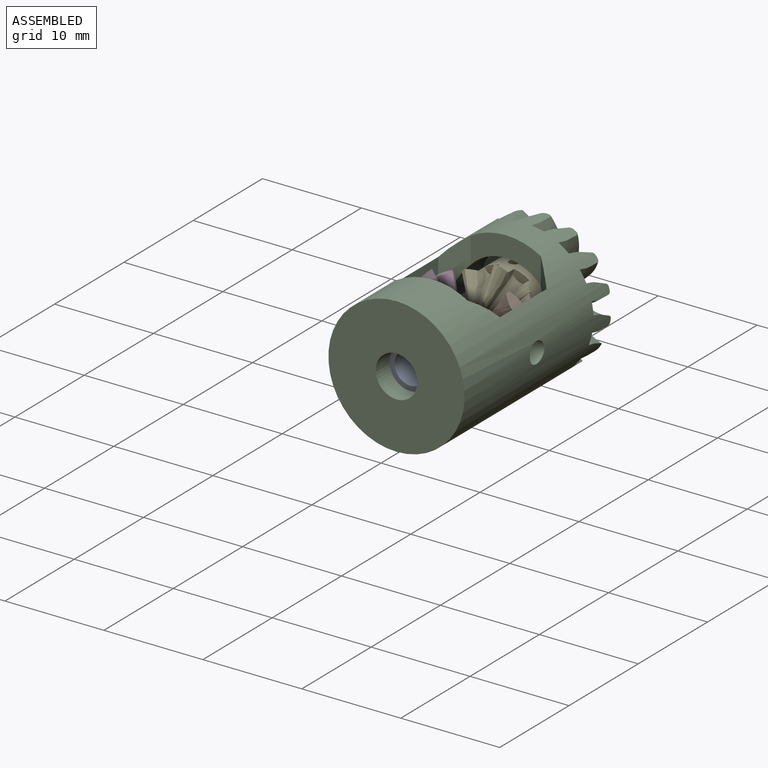
[diagram: assembled view]
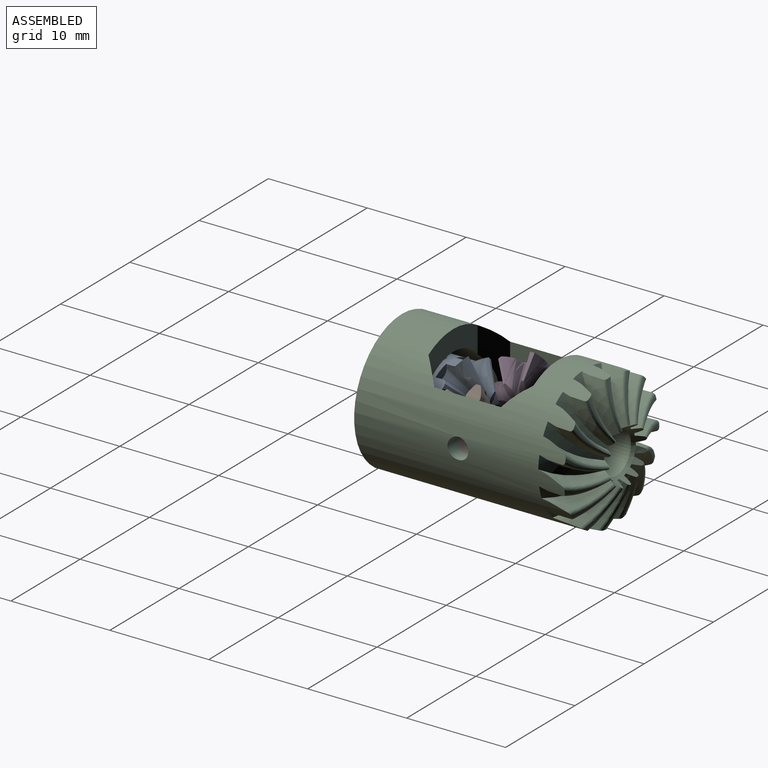
[diagram: assembled view, second angle]
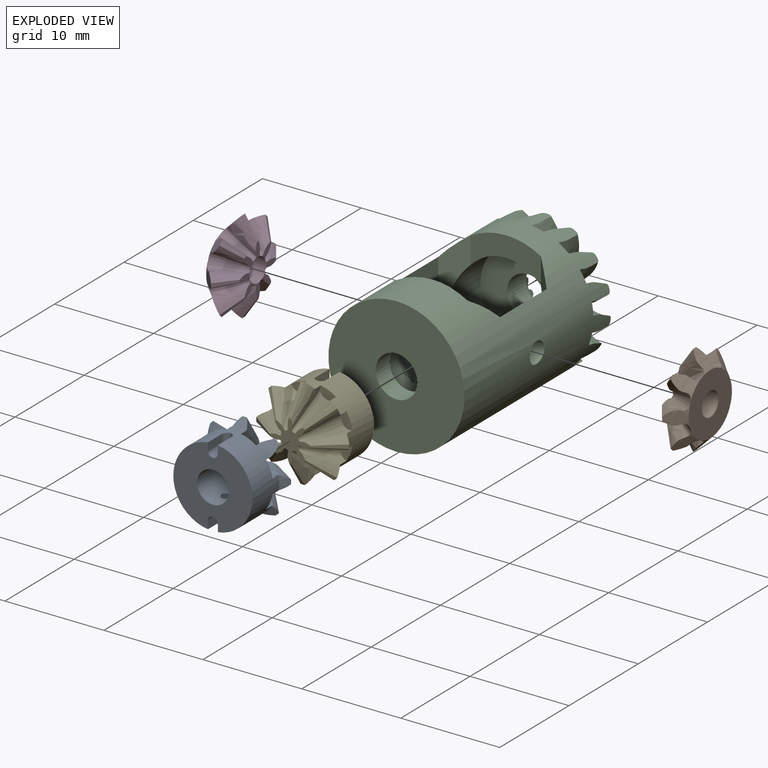
[diagram: exploded view]
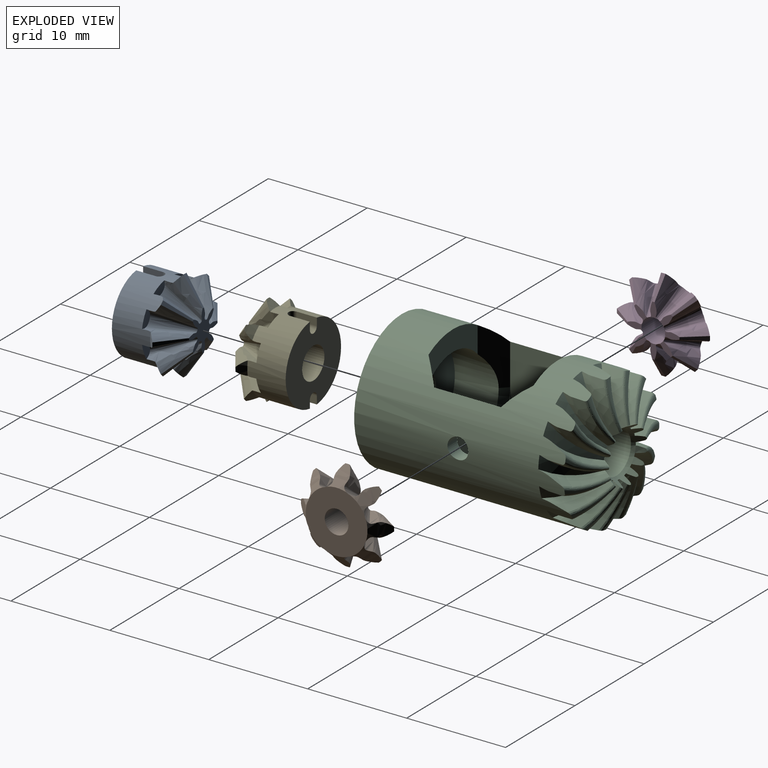
[diagram: exploded view, second angle]
ASSEMBLY  parts=5 mates=8
PART A: 70 faces, bbox 10.5x7x10.5 mm
  f0: cylinder r=0.5mm len=2.4mm, axis (0,0,1), area 5.8mm2, adj f3,f61,f67,f68,f69
  f1: cylinder r=0.5mm len=2.4mm, axis (0,0,1), area 5.8mm2, adj f3,f61,f64,f65,f66
  f2: plane 8x7.94mm, normal (0,1,0), area 39.9mm2, adj f3,f61,f64,f65,f66,f67,f68,f69
  f3: cylinder r=4mm len=8mm, axis (0,1,0), area 81.2mm2, adj f0,f1,f2,f4,f6,f8,f10,f12
  f4: cone r=4mm half-angle=45deg, axis (0,-1,0), area 0.9mm2, adj f3,f8,f9,f10
  f5: plane 4.23x4.23mm, normal (0,-1,0), area 6.4mm2, adj f7,f8,f9,f10,f11,f14,f15,f16
  f6: plane 1.73x1.25mm, normal (0,-1,0), area 1.2mm2, adj f3,f7,f8,f59,f60
  f7: bspline ~4.61x3.01mm, area 1.8mm2, adj f5,f6,f8,f60
  f8: bspline ~4.25x4.2mm, area 5.7mm2, adj f3,f4,f5,f6,f7,f9
  f9: cone r=3.05mm half-angle=41.5deg, axis (0,0.97,0.23), area 1mm2, adj f4,f5,f8,f10
  f10: bspline ~4.25x4.2mm, area 5.7mm2, adj f3,f4,f5,f9,f11,f12
  f11: bspline ~4.61x3.01mm, area 1.8mm2, adj f5,f10,f12,f14
  f12: plane 1.73x1.25mm, normal (0,-1,0), area 1.2mm2, adj f3,f10,f11,f14,f15
  f13: cone r=4mm half-angle=45deg, axis (0,-1,0), area 0.9mm2, adj f3,f15,f16,f17
  f14: bspline ~4.61x2.73mm, area 1.8mm2, adj f5,f11,f12,f15
  f15: bspline ~4.25x3mm, area 5.7mm2, adj f3,f5,f12,f13,f14,f16
  f16: cone r=3.05mm half-angle=41.5deg, axis (0.17,0.97,0.17), area 1mm2, adj f5,f13,f15,f17
  f17: bspline ~4.25x3mm, area 5.7mm2, adj f3,f5,f13,f16,f18,f19
  f18: bspline ~4.61x2.73mm, area 1.8mm2, adj f5,f17,f19,f21
  f19: plane 1.73x1.25mm, normal (0,-1,0), area 1.2mm2, adj f3,f17,f18,f21,f22
  f20: cone r=4mm half-angle=45deg, axis (0,-1,0), area 0.9mm2, adj f3,f22,f23,f24
  f21: bspline ~4.61x3.01mm, area 1.8mm2, adj f5,f18,f19,f22
  f22: bspline ~4.25x4.2mm, area 5.7mm2, adj f3,f5,f19,f20,f21,f23
  f23: cone r=3.05mm half-angle=41.5deg, axis (0.23,0.97,0), area 1mm2, adj f5,f20,f22,f24
  f24: bspline ~4.25x4.2mm, area 5.7mm2, adj f3,f5,f20,f23,f25,f26
  f25: bspline ~4.61x3.01mm, area 1.8mm2, adj f5,f24,f26,f28
  f26: plane 1.73x1.25mm, normal (0,-1,0), area 1.2mm2, adj f3,f24,f25,f28,f29
  f27: cone r=4mm half-angle=45deg, axis (0,-1,0), area 0.9mm2, adj f3,f29,f30,f31
  f28: bspline ~4.61x2.73mm, area 1.8mm2, adj f5,f25,f26,f29
  f29: bspline ~4.25x3mm, area 5.7mm2, adj f3,f5,f26,f27,f28,f30
  f30: cone r=3.05mm half-angle=41.5deg, axis (0.17,0.97,-0.17), area 1mm2, adj f5,f27,f29,f31
  f31: bspline ~4.25x3mm, area 5.7mm2, adj f3,f5,f27,f30,f32,f33
  f32: bspline ~4.61x2.73mm, area 1.8mm2, adj f5,f31,f33,f35
  f33: plane 1.73x1.25mm, normal (0,-1,0), area 1.2mm2, adj f3,f31,f32,f35,f36
  f34: cone r=4mm half-angle=45deg, axis (0,-1,0), area 0.9mm2, adj f3,f36,f37,f38
  f35: bspline ~4.61x3.01mm, area 1.8mm2, adj f5,f32,f33,f36
  f36: bspline ~4.25x4.2mm, area 5.7mm2, adj f3,f5,f33,f34,f35,f37
  f37: cone r=3.05mm half-angle=41.5deg, axis (0,0.97,-0.23), area 1mm2, adj f5,f34,f36,f38
  f38: bspline ~4.25x4.2mm, area 5.7mm2, adj f3,f5,f34,f37,f39,f40
  f39: bspline ~4.61x3.01mm, area 1.8mm2, adj f5,f38,f40,f42
  f40: plane 1.73x1.25mm, normal (0,-1,0), area 1.2mm2, adj f3,f38,f39,f42,f43
  f41: cone r=4mm half-angle=45deg, axis (0,-1,0), area 0.9mm2, adj f3,f43,f44,f45
  f42: bspline ~4.61x2.73mm, area 1.8mm2, adj f5,f39,f40,f43
  f43: bspline ~4.25x3mm, area 5.7mm2, adj f3,f5,f40,f41,f42,f44
  f44: cone r=3.05mm half-angle=41.5deg, axis (-0.17,0.97,-0.17), area 1mm2, adj f5,f41,f43,f45
  f45: bspline ~4.25x3mm, area 5.7mm2, adj f3,f5,f41,f44,f46,f47
  f46: bspline ~4.61x2.73mm, area 1.8mm2, adj f5,f45,f47,f49
  f47: plane 1.73x1.25mm, normal (0,-1,0), area 1.2mm2, adj f3,f45,f46,f49,f50
  f48: cone r=4mm half-angle=45deg, axis (0,-1,0), area 0.9mm2, adj f3,f50,f51,f52
  f49: bspline ~4.61x3.01mm, area 1.8mm2, adj f5,f46,f47,f50
  f50: bspline ~4.25x4.2mm, area 5.7mm2, adj f3,f5,f47,f48,f49,f51
  f51: cone r=3.05mm half-angle=41.5deg, axis (-0.23,0.97,0), area 1mm2, adj f5,f48,f50,f52
  f52: bspline ~4.25x4.2mm, area 5.7mm2, adj f3,f5,f48,f51,f53,f54
  f53: bspline ~4.61x3.01mm, area 1.8mm2, adj f5,f52,f54,f56
  f54: plane 1.73x1.25mm, normal (0,-1,0), area 1.2mm2, adj f3,f52,f53,f56,f57
  f55: cone r=4mm half-angle=45deg, axis (0,-1,0), area 0.9mm2, adj f3,f57,f58,f59
  f56: bspline ~4.61x2.73mm, area 1.8mm2, adj f5,f53,f54,f57
  f57: bspline ~4.25x3mm, area 5.7mm2, adj f3,f5,f54,f55,f56,f58
  f58: cone r=3.05mm half-angle=41.5deg, axis (-0.17,0.97,0.17), area 1mm2, adj f5,f55,f57,f59
  f59: bspline ~4.25x3mm, area 5.7mm2, adj f3,f5,f6,f55,f58,f60
  f60: bspline ~4.61x2.73mm, area 1.8mm2, adj f5,f6,f7,f59
  f61: cylinder r=1.6mm len=3.88mm, axis (0,1,0), area 37.4mm2, adj f0,f1,f2,f63
  f62: plane 1.2x1.2mm, normal (0,1,0), area 1.1mm2, adj f63
  f63: torus R=0.6mm, axis (0,-1,0), area 12.2mm2, adj f61,f62
  f64: cylinder r=0.5mm len=2mm, axis (0,1,0), area 3.1mm2, adj f1,f2,f65,f66
  f65: plane 2x0.77mm, normal (1,0,0), area 1.5mm2, adj f1,f2,f3,f64
  f66: plane 2x0.77mm, normal (-1,0,0), area 1.5mm2, adj f1,f2,f3,f64
  f67: cylinder r=0.5mm len=2mm, axis (0,1,0), area 3.1mm2, adj f0,f2,f68,f69
  f68: plane 2x0.77mm, normal (-1,0,0), area 1.5mm2, adj f0,f2,f3,f67
  f69: plane 2x0.77mm, normal (1,0,0), area 1.5mm2, adj f0,f2,f3,f67
PART B: 58 faces, bbox 9.5x3.9x9.5 mm
  f0: plane 6.25x6.25mm, normal (0,1,0), area 26.1mm2, adj f8,f9,f10,f11,f12,f13,f14,f15
  f1: plane 1.49x1.49mm, normal (0,-1,0), area 0.8mm2, adj f10,f11,f30,f31,f32,f57
  f2: plane 1.61x0.79mm, normal (0,-1,0), area 0.8mm2, adj f8,f9,f26,f27,f28,f57
  f3: plane 1.49x1.49mm, normal (0,-1,0), area 0.8mm2, adj f22,f23,f54,f55,f56,f57
  f4: plane 1.61x0.79mm, normal (0,-1,0), area 0.8mm2, adj f20,f21,f50,f51,f52,f57
  f5: plane 1.49x1.49mm, normal (0,-1,0), area 0.8mm2, adj f18,f19,f46,f47,f48,f57
  f6: plane 1.61x0.79mm, normal (0,-1,0), area 0.8mm2, adj f16,f17,f42,f43,f44,f57
  f7: plane 1.49x1.49mm, normal (0,-1,0), area 0.8mm2, adj f14,f15,f38,f39,f40,f57
  f8: bspline ~3.61x2.37mm, area 1.6mm2, adj f0,f2,f23,f25,f26,f57
  f9: bspline ~3.61x2.37mm, area 1.6mm2, adj f0,f2,f10,f25,f28,f57
  f10: bspline ~3.61x2.14mm, area 1.6mm2, adj f0,f1,f9,f29,f30,f57
  f11: bspline ~3.61x2.14mm, area 1.6mm2, adj f0,f1,f12,f29,f32,f57
  f12: bspline ~3.61x2.37mm, area 1.6mm2, adj f0,f11,f24,f33,f34,f57
  f13: bspline ~3.61x2.37mm, area 1.6mm2, adj f0,f14,f24,f33,f36,f57
  f14: bspline ~3.61x2.14mm, area 1.6mm2, adj f0,f7,f13,f37,f38,f57
  f15: bspline ~3.61x2.14mm, area 1.6mm2, adj f0,f7,f16,f37,f40,f57
  f16: bspline ~3.61x2.37mm, area 1.6mm2, adj f0,f6,f15,f41,f42,f57
  f17: bspline ~3.61x2.37mm, area 1.6mm2, adj f0,f6,f18,f41,f44,f57
  f18: bspline ~3.61x2.14mm, area 1.6mm2, adj f0,f5,f17,f45,f46,f57
  f19: bspline ~3.61x2.14mm, area 1.6mm2, adj f0,f5,f20,f45,f48,f57
  f20: bspline ~3.61x2.37mm, area 1.6mm2, adj f0,f4,f19,f49,f50,f57
  f21: bspline ~3.61x2.37mm, area 1.6mm2, adj f0,f4,f22,f49,f52,f57
  f22: bspline ~3.61x2.14mm, area 1.6mm2, adj f0,f3,f21,f53,f54,f57
  f23: bspline ~3.61x2.14mm, area 1.6mm2, adj f0,f3,f8,f53,f56,f57
  f24: plane 1.61x0.79mm, normal (0,-1,0), area 0.8mm2, adj f12,f13,f34,f35,f36,f57
  f25: cone r=3.12mm half-angle=45deg, axis (0,-1,0), area 2.3mm2, adj f0,f8,f9,f26,f27,f28
  f26: bspline ~3.48x3.45mm, area 4.8mm2, adj f2,f8,f25,f27
  f27: cone r=2.48mm half-angle=41.5deg, axis (0,0.97,0.23), area 0.8mm2, adj f2,f25,f26,f28
  f28: bspline ~3.48x3.45mm, area 4.8mm2, adj f2,f9,f25,f27
  f29: cone r=3.12mm half-angle=45deg, axis (0,-1,0), area 2.3mm2, adj f0,f10,f11,f30,f31,f32
  f30: bspline ~3.48x2.47mm, area 4.8mm2, adj f1,f10,f29,f31
  f31: cone r=2.48mm half-angle=41.5deg, axis (0.17,0.97,0.17), area 0.8mm2, adj f1,f29,f30,f32
  f32: bspline ~3.48x2.47mm, area 4.8mm2, adj f1,f11,f29,f31
  f33: cone r=3.12mm half-angle=45deg, axis (0,-1,0), area 2.3mm2, adj f0,f12,f13,f34,f35,f36
  f34: bspline ~3.48x3.45mm, area 4.8mm2, adj f12,f24,f33,f35
  f35: cone r=2.48mm half-angle=41.5deg, axis (0.23,0.97,0), area 0.8mm2, adj f24,f33,f34,f36
  f36: bspline ~3.48x3.45mm, area 4.8mm2, adj f13,f24,f33,f35
  f37: cone r=3.12mm half-angle=45deg, axis (0,-1,0), area 2.3mm2, adj f0,f14,f15,f38,f39,f40
  f38: bspline ~3.48x2.47mm, area 4.8mm2, adj f7,f14,f37,f39
  f39: cone r=2.48mm half-angle=41.5deg, axis (0.17,0.97,-0.17), area 0.8mm2, adj f7,f37,f38,f40
  f40: bspline ~3.48x2.47mm, area 4.8mm2, adj f7,f15,f37,f39
  f41: cone r=3.12mm half-angle=45deg, axis (0,-1,0), area 2.3mm2, adj f0,f16,f17,f42,f43,f44
  f42: bspline ~3.48x3.45mm, area 4.8mm2, adj f6,f16,f41,f43
  f43: cone r=2.48mm half-angle=41.5deg, axis (0,0.97,-0.23), area 0.8mm2, adj f6,f41,f42,f44
  f44: bspline ~3.48x3.45mm, area 4.8mm2, adj f6,f17,f41,f43
  f45: cone r=3.12mm half-angle=45deg, axis (0,-1,0), area 2.3mm2, adj f0,f18,f19,f46,f47,f48
  f46: bspline ~3.48x2.47mm, area 4.8mm2, adj f5,f18,f45,f47
  f47: cone r=2.48mm half-angle=41.5deg, axis (-0.17,0.97,-0.17), area 0.8mm2, adj f5,f45,f46,f48
  f48: bspline ~3.48x2.47mm, area 4.8mm2, adj f5,f19,f45,f47
  f49: cone r=3.12mm half-angle=45deg, axis (0,-1,0), area 2.3mm2, adj f0,f20,f21,f50,f51,f52
  f50: bspline ~3.48x3.45mm, area 4.8mm2, adj f4,f20,f49,f51
  f51: cone r=2.48mm half-angle=41.5deg, axis (-0.23,0.97,0), area 0.8mm2, adj f4,f49,f50,f52
  f52: bspline ~3.48x3.45mm, area 4.8mm2, adj f4,f21,f49,f51
  f53: cone r=3.12mm half-angle=45deg, axis (0,-1,0), area 2.3mm2, adj f0,f22,f23,f54,f55,f56
  f54: bspline ~3.48x2.47mm, area 4.8mm2, adj f3,f22,f53,f55
  f55: cone r=2.48mm half-angle=41.5deg, axis (-0.17,0.97,0.17), area 0.8mm2, adj f3,f53,f54,f56
  f56: bspline ~3.48x2.47mm, area 4.8mm2, adj f3,f23,f53,f55
  f57: cylinder r=1.2mm len=3.03mm, axis (0,1,0), area 22.8mm2, adj f0,f1,f2,f3,f4,f5,f6,f7
PART C: 184 faces, bbox 17.2x23.8x17.2 mm
  f0: cone r=3.37mm half-angle=44.9deg, axis (1,0,0), area 0.3mm2, adj f4,f163,f180
  f1: cone r=3.37mm half-angle=44.9deg, axis (1,0,0), area 25.7mm2, adj f7,f169,f179
  f2: cone r=5.3mm half-angle=44.9deg, axis (-1,0,0), area 0.3mm2, adj f5,f163,f180
  f3: cone r=5.3mm half-angle=44.9deg, axis (-1,0,0), area 25.7mm2, adj f6,f171,f179
  f4: cylinder r=5.3mm len=0.69mm, axis (-1,0,0), area 0.1mm2, adj f0,f163,f180
  f5: cylinder r=5.3mm len=0.69mm, axis (-1,0,0), area 0.1mm2, adj f2,f163,f180
  f6: cylinder r=5.3mm len=6.52mm, axis (-1,0,0), area 0mm2, adj f3,f179
  f7: cylinder r=5.3mm len=6.52mm, axis (-1,0,0), area 0mm2, adj f1,f179
  f8: cylinder r=5.3mm len=0.69mm, axis (-1,0,0), area 0.1mm2, adj f10,f117,f181
  f9: cone r=3.37mm half-angle=44.9deg, axis (1,0,0), area 0.3mm2, adj f117,f170,f181
  f10: cone r=5.3mm half-angle=44.9deg, axis (-1,0,0), area 0.3mm2, adj f8,f117,f181
  f11: bspline ~5.83x4.24mm, area 3.8mm2, adj f14,f16,f165,f172
  f12: bspline ~5.81x4.23mm, area 4mm2, adj f13,f15,f165,f172
  f13: bspline ~4.98x2.19mm, area 1.8mm2, adj f12,f14,f120,f165,f172
  f14: bspline ~5.19x2.32mm, area 1.9mm2, adj f11,f13,f120,f165,f172
  f15: bspline ~4.86x3.21mm, area 2.5mm2, adj f12,f105,f119,f165,f172
  f16: bspline ~5.36x3.28mm, area 2.6mm2, adj f11,f104,f118,f165,f172
  f17: cylinder r=2.1mm len=4.2mm, axis (0,-1,0), area 36mm2, adj f164,f172
  f18: bspline ~5.79x4.24mm, area 3.8mm2, adj f21,f23,f165,f172
  f19: bspline ~6.03x4.23mm, area 4mm2, adj f20,f22,f165,f172
  f20: bspline ~5.12x2.19mm, area 1.8mm2, adj f19,f21,f123,f165,f172
  f21: bspline ~5.08x2.32mm, area 1.9mm2, adj f18,f20,f123,f165,f172
  f22: bspline ~5.16x3.21mm, area 2.5mm2, adj f19,f104,f122,f165,f172
  f23: bspline ~5.24x3.28mm, area 2.6mm2, adj f18,f103,f121,f165,f172
  f24: bspline ~4.75x4.24mm, area 3.8mm2, adj f27,f29,f165,f172
  f25: bspline ~5.2x4.23mm, area 4mm2, adj f26,f28,f165,f172
  f26: bspline ~4.51x2.85mm, area 1.8mm2, adj f25,f27,f126,f165,f172
  f27: bspline ~4.19x3.37mm, area 1.9mm2, adj f24,f26,f126,f165,f172
  f28: bspline ~4.57x3.21mm, area 2.5mm2, adj f25,f103,f125,f165,f172
  f29: bspline ~4.21x3.42mm, area 2.6mm2, adj f24,f102,f124,f165,f172
  f30: bspline ~5.2x4.24mm, area 3.9mm2, adj f33,f35,f165,f172
  f31: bspline ~4.99x4.23mm, area 4mm2, adj f32,f34,f165,f172
  f32: bspline ~4.34x3.16mm, area 1.8mm2, adj f31,f33,f129,f165,f172
  f33: bspline ~4.68x2.58mm, area 1.9mm2, adj f30,f32,f129,f165,f172
  f34: bspline ~4.07x3.21mm, area 2.5mm2, adj f31,f102,f128,f165,f172
  f35: bspline ~4.84x3.28mm, area 2.6mm2, adj f30,f116,f127,f165,f172
  f36: bspline ~5.92x4.24mm, area 3.8mm2, adj f39,f41,f165,f172
  f37: bspline ~5.97x4.23mm, area 4mm2, adj f38,f40,f165,f172
  f38: bspline ~5.08x2.19mm, area 1.8mm2, adj f37,f39,f132,f165,f172
  f39: bspline ~5.25x2.32mm, area 1.9mm2, adj f36,f38,f132,f165,f172
  f40: bspline ~5.02x3.21mm, area 2.5mm2, adj f37,f116,f131,f165,f172
  f41: bspline ~5.42x3.28mm, area 2.6mm2, adj f36,f115,f130,f165,f172
  f42: bspline ~5.62x4.24mm, area 3.8mm2, adj f45,f47,f165,f172
  f43: bspline ~5.91x4.23mm, area 4mm2, adj f44,f46,f165,f172
  f44: bspline ~5.04x2.19mm, area 1.8mm2, adj f43,f45,f135,f165,f172
  f45: bspline ~4.93x2.32mm, area 1.9mm2, adj f42,f44,f135,f165,f172
  f46: bspline ~5.1x3.21mm, area 2.5mm2, adj f43,f115,f134,f165,f172
  f47: bspline ~5.06x3.28mm, area 2.6mm2, adj f42,f114,f133,f165,f172
  f48: bspline ~4.35x4.24mm, area 3.8mm2, adj f51,f53,f165,f172
  f49: bspline ~4.84x4.23mm, area 4mm2, adj f50,f52,f165,f172
  f50: bspline ~4.24x3.29mm, area 1.8mm2, adj f49,f51,f138,f165,f172
  f51: bspline ~3.84x3.75mm, area 1.9mm2, adj f48,f50,f138,f165,f172
  f52: bspline ~4.29x3.21mm, area 2.5mm2, adj f49,f114,f137,f165,f172
  f53: bspline ~3.84x3.83mm, area 2.6mm2, adj f48,f113,f136,f165,f172
  f54: bspline ~5.47x4.24mm, area 3.8mm2, adj f57,f59,f165,f172
  f55: bspline ~5.32x4.23mm, area 4mm2, adj f56,f58,f165,f172
  f56: bspline ~4.61x2.73mm, area 1.8mm2, adj f55,f57,f141,f165,f172
  f57: bspline ~4.9x2.32mm, area 1.9mm2, adj f54,f56,f141,f165,f172
  f58: bspline ~4.39x3.21mm, area 2.5mm2, adj f55,f113,f140,f165,f172
  f59: bspline ~5.07x3.28mm, area 2.6mm2, adj f54,f112,f139,f165,f172
  f60: bspline ~5.94x4.24mm, area 3.8mm2, adj f63,f65,f165,f172
  f61: bspline ~6.05x4.23mm, area 4mm2, adj f62,f64,f165,f172
  f62: bspline ~5.13x2.19mm, area 1.8mm2, adj f61,f63,f144,f165,f172
  f63: bspline ~5.25x2.32mm, area 1.9mm2, adj f60,f62,f144,f165,f172
  f64: bspline ~5.12x3.21mm, area 2.5mm2, adj f61,f112,f143,f165,f172
  f65: bspline ~5.42x3.28mm, area 2.6mm2, adj f60,f111,f142,f165,f172
  f66: bspline ~5.39x4.24mm, area 3.8mm2, adj f69,f71,f165,f172
  f67: bspline ~5.74x4.23mm, area 4mm2, adj f68,f70,f165,f172
  f68: bspline ~4.9x2.19mm, area 1.8mm2, adj f67,f69,f147,f165,f172
  f69: bspline ~4.73x2.5mm, area 1.9mm2, adj f66,f68,f147,f165,f172
  f70: bspline ~4.98x3.21mm, area 2.5mm2, adj f67,f111,f146,f165,f172
  f71: bspline ~4.83x3.28mm, area 2.6mm2, adj f66,f110,f145,f165,f172
  f72: bspline ~4.48x4.24mm, area 3.8mm2, adj f75,f77,f165,f172
  f73: bspline ~4.51x4.23mm, area 4mm2, adj f74,f76,f165,f172
  f74: bspline ~3.92x3.68mm, area 1.8mm2, adj f73,f75,f150,f165,f172
  f75: bspline ~4.08x3.46mm, area 1.9mm2, adj f72,f74,f150,f165,f172
  f76: bspline ~3.97x3.32mm, area 2.5mm2, adj f73,f110,f149,f165,f172
  f77: bspline ~4.22x3.4mm, area 2.6mm2, adj f72,f109,f148,f165,f172
  f78: bspline ~5.68x4.24mm, area 3.8mm2, adj f81,f83,f165,f172
  f79: bspline ~5.6x4.23mm, area 4mm2, adj f80,f82,f165,f172
  f80: bspline ~4.82x2.28mm, area 1.8mm2, adj f79,f81,f153,f165,f172
  f81: bspline ~5.07x2.32mm, area 1.9mm2, adj f78,f80,f153,f165,f172
  f82: bspline ~4.65x3.21mm, area 2.5mm2, adj f79,f109,f152,f165,f172
  f83: bspline ~5.24x3.28mm, area 2.6mm2, adj f78,f108,f151,f165,f172
  f84: bspline ~5.9x4.24mm, area 3.8mm2, adj f87,f89,f165,f172
  f85: bspline ~6.07x4.23mm, area 4mm2, adj f86,f88,f165,f172
  f86: bspline ~5.15x2.19mm, area 1.8mm2, adj f85,f87,f156,f165,f172
  f87: bspline ~5.19x2.32mm, area 1.9mm2, adj f84,f86,f156,f165,f172
  f88: bspline ~5.17x3.21mm, area 2.5mm2, adj f85,f108,f155,f165,f172
  f89: bspline ~5.36x3.28mm, area 2.6mm2, adj f84,f107,f154,f165,f172
  f90: bspline ~5.09x4.24mm, area 3.8mm2, adj f93,f95,f165,f172
  f91: bspline ~5.5x4.23mm, area 4mm2, adj f92,f94,f165,f172
  f92: bspline ~4.73x2.39mm, area 1.8mm2, adj f91,f93,f159,f165,f172
  f93: bspline ~4.48x2.95mm, area 1.9mm2, adj f90,f92,f159,f165,f172
  f94: bspline ~4.8x3.21mm, area 2.5mm2, adj f91,f107,f158,f165,f172
  f95: bspline ~4.54x3.28mm, area 2.6mm2, adj f90,f106,f157,f165,f172
  f96: bspline ~4.87x4.24mm, area 3.8mm2, adj f99,f101,f165,f172
  f97: bspline ~4.6x4.23mm, area 4mm2, adj f98,f100,f165,f172
  f98: bspline ~4.03x3.56mm, area 1.8mm2, adj f97,f99,f162,f165,f172
  f99: bspline ~4.4x3.04mm, area 1.9mm2, adj f96,f98,f162,f165,f172
  f100: bspline ~3.72x3.6mm, area 2.5mm2, adj f97,f106,f161,f165,f172
  f101: bspline ~4.56x3.28mm, area 2.6mm2, adj f96,f105,f160,f165,f172
  f102: cone r=6.88mm half-angle=53.1deg, axis (0,-1,0), area 4.4mm2, adj f29,f34,f124,f128,f165,f172
  f103: cone r=6.88mm half-angle=53.1deg, axis (0,-1,0), area 4.4mm2, adj f23,f28,f121,f125,f165,f172
  f104: cone r=6.88mm half-angle=53.1deg, axis (0,-1,0), area 4.4mm2, adj f16,f22,f118,f122,f165,f172
  f105: cone r=6.88mm half-angle=53.1deg, axis (0,-1,0), area 4.4mm2, adj f15,f101,f119,f160,f165,f172
  f106: cone r=6.88mm half-angle=53.1deg, axis (0,-1,0), area 4.4mm2, adj f95,f100,f157,f161,f165,f172
  f107: cone r=6.88mm half-angle=53.1deg, axis (0,-1,0), area 4.4mm2, adj f89,f94,f154,f158,f165,f172
  f108: cone r=6.88mm half-angle=53.1deg, axis (0,-1,0), area 4.4mm2, adj f83,f88,f151,f155,f165,f172
  f109: cone r=6.88mm half-angle=53.1deg, axis (0,-1,0), area 4.4mm2, adj f77,f82,f148,f152,f165,f172
  f110: cone r=6.88mm half-angle=53.1deg, axis (0,-1,0), area 4.4mm2, adj f71,f76,f145,f149,f165,f172
  f111: cone r=6.88mm half-angle=53.1deg, axis (0,-1,0), area 4.4mm2, adj f65,f70,f142,f146,f165,f172
  f112: cone r=6.88mm half-angle=53.1deg, axis (0,-1,0), area 4.4mm2, adj f59,f64,f139,f143,f165,f172
  f113: cone r=6.88mm half-angle=53.1deg, axis (0,-1,0), area 4.4mm2, adj f53,f58,f136,f140,f165,f172
  f114: cone r=6.88mm half-angle=53.1deg, axis (0,-1,0), area 4.4mm2, adj f47,f52,f133,f137,f165,f172
  f115: cone r=6.88mm half-angle=53.1deg, axis (0,-1,0), area 4.4mm2, adj f41,f46,f130,f134,f165,f172
  f116: cone r=6.88mm half-angle=53.1deg, axis (0,-1,0), area 4.4mm2, adj f35,f40,f127,f131,f165,f172
  f117: cylinder r=4.8mm len=9.6mm, axis (0,-1,0), area 120.5mm2, adj f8,f9,f10,f164,f170,f176,f177,f178
  f118: bspline ~6.16x4.94mm, area 1.1mm2, adj f16,f104,f165
  f119: bspline ~5.69x4.94mm, area 1.1mm2, adj f15,f105,f165
  f120: cone r=6.88mm half-angle=67.4deg, axis (0,-1,0), area 0.4mm2, adj f13,f14,f165
  f121: bspline ~6.15x4.94mm, area 1.1mm2, adj f23,f103,f165
  f122: bspline ~6.24x4.94mm, area 1.1mm2, adj f22,f104,f165
  f123: cone r=6.88mm half-angle=67.4deg, axis (0,-1,0), area 0.4mm2, adj f20,f21,f165
  f124: bspline ~5.08x4.94mm, area 1.1mm2, adj f29,f102,f165
  f125: bspline ~5.72x4.94mm, area 1.1mm2, adj f28,f103,f165
  f126: cone r=6.88mm half-angle=67.4deg, axis (0,-1,0), area 0.4mm2, adj f26,f27,f165
  f127: bspline ~5.46x4.94mm, area 1.1mm2, adj f35,f116,f165
  f128: bspline ~4.94x4.61mm, area 1.1mm2, adj f34,f102,f165
  f129: cone r=6.88mm half-angle=67.4deg, axis (0,-1,0), area 0.4mm2, adj f32,f33,f165
  f130: bspline ~6.26x4.94mm, area 1.1mm2, adj f41,f115,f165
  f131: bspline ~5.92x4.94mm, area 1.1mm2, adj f40,f116,f165
  f132: cone r=6.88mm half-angle=67.4deg, axis (0,-1,0), area 0.4mm2, adj f38,f39,f165
  f133: bspline ~5.98x4.94mm, area 1.1mm2, adj f47,f114,f165
  f134: bspline ~6.21x4.94mm, area 1.1mm2, adj f46,f115,f165
  f135: cone r=6.88mm half-angle=67.4deg, axis (0,-1,0), area 0.4mm2, adj f44,f45,f165
  f136: bspline ~4.94x4.67mm, area 1.1mm2, adj f53,f113,f165
  f137: bspline ~5.43x4.94mm, area 1.1mm2, adj f52,f114,f165
  f138: cone r=6.88mm half-angle=67.4deg, axis (0,-1,0), area 0.4mm2, adj f50,f51,f165
  f139: bspline ~5.76x4.94mm, area 1.1mm2, adj f59,f112,f165
  f140: bspline ~5.03x4.94mm, area 1.1mm2, adj f58,f113,f165
  f141: cone r=6.88mm half-angle=67.4deg, axis (0,-1,0), area 0.4mm2, adj f56,f57,f165
  f142: bspline ~6.29x4.94mm, area 1.1mm2, adj f65,f111,f165
  f143: bspline ~6.1x4.94mm, area 1.1mm2, adj f64,f112,f165
  f144: cone r=6.88mm half-angle=67.4deg, axis (0,-1,0), area 0.4mm2, adj f62,f63,f165
  f145: bspline ~5.74x4.94mm, area 1.1mm2, adj f71,f110,f165
  f146: bspline ~6.12x4.94mm, area 1.1mm2, adj f70,f111,f165
  f147: cone r=6.88mm half-angle=67.4deg, axis (0,-1,0), area 0.4mm2, adj f68,f69,f165
  f148: bspline ~4.94x4.69mm, area 1.1mm2, adj f77,f109,f165
  f149: bspline ~5.08x4.94mm, area 1.1mm2, adj f76,f110,f165
  f150: cone r=6.88mm half-angle=67.4deg, axis (0,-1,0), area 0.4mm2, adj f74,f75,f165
  f151: bspline ~5.99x4.94mm, area 1.1mm2, adj f83,f108,f165
  f152: bspline ~5.39x4.94mm, area 1.1mm2, adj f82,f109,f165
  f153: cone r=6.88mm half-angle=67.4deg, axis (0,-1,0), area 0.4mm2, adj f80,f81,f165
  f154: bspline ~6.26x4.94mm, area 1.1mm2, adj f89,f107,f165
  f155: bspline ~6.2x4.94mm, area 1.1mm2, adj f88,f108,f165
  f156: cone r=6.88mm half-angle=67.4deg, axis (0,-1,0), area 0.4mm2, adj f86,f87,f165
  f157: bspline ~5.44x4.94mm, area 1.1mm2, adj f95,f106,f165
  f158: bspline ~5.95x4.94mm, area 1.1mm2, adj f94,f107,f165
  f159: cone r=6.88mm half-angle=67.4deg, axis (0,-1,0), area 0.4mm2, adj f92,f93,f165
  f160: bspline ~5.1x4.94mm, area 1.1mm2, adj f101,f105,f165
  f161: bspline ~4.94x4.67mm, area 1.1mm2, adj f100,f106,f165
  f162: cone r=6.88mm half-angle=67.4deg, axis (0,-1,0), area 0.4mm2, adj f98,f99,f165
  f163: cylinder r=4.8mm len=9.6mm, axis (0,-1,0), area 120.5mm2, adj f0,f2,f4,f5,f168,f173,f174,f175
  f164: plane 9.6x9.6mm, normal (0,-1,0), area 58.5mm2, adj f17,f117
  f165: cylinder r=6.88mm len=21.21mm, axis (0,-1,0), area 725.4mm2, adj f11,f12,f13,f14,f15,f16,f18,f19
  f166: plane 13.76x13.76mm, normal (0,-1,0), area 134.9mm2, adj f165,f167
  f167: cylinder r=2.1mm len=4.2mm, axis (0,-1,0), area 26.4mm2, adj f166,f168
  f168: plane 9.6x9.6mm, normal (0,1,0), area 58.5mm2, adj f163,f167
  f169: plane 7.53x6.74mm, normal (1,0,0), area 42.4mm2, adj f1,f165,f173,f178,f183
  f170: cylinder r=5.3mm len=0.69mm, axis (-1,0,0), area 0.1mm2, adj f9,f117,f181
  f171: plane 7.53x6.74mm, normal (-1,0,0), area 42.4mm2, adj f3,f165,f175,f176,f182
  f172: cone r=2.1mm half-angle=28.7deg, axis (0,1,0), area 12.5mm2, adj f11,f12,f13,f14,f15,f16,f17,f18
  f173: plane 6.06x2.1mm, normal (0.71,0.71,0), area 10.1mm2, adj f163,f165,f169,f174,f180
  f174: plane 7.09x3.64mm, normal (0,1,0), area 15.9mm2, adj f163,f165,f173,f175
  f175: plane 6.06x2.1mm, normal (-0.71,0.71,0), area 10.1mm2, adj f163,f165,f171,f174,f180
  f176: plane 6.06x2.1mm, normal (-0.71,-0.71,0), area 10.1mm2, adj f117,f165,f171,f177,f181
  f177: plane 7.09x3.64mm, normal (0,-1,0), area 15.9mm2, adj f117,f165,f176,f178
  f178: plane 6.06x2.1mm, normal (0.71,-0.71,0), area 10.1mm2, adj f117,f165,f169,f177,f181
  f179: cylinder r=5.48mm len=10.96mm, axis (0,1,0), area 33.3mm2, adj f1,f3,f6,f7,f180,f181
  f180: cone r=5.48mm half-angle=45.1deg, axis (0,1,0), area 14.8mm2, adj f0,f2,f4,f5,f163,f173,f175,f179
  f181: cone r=3.55mm half-angle=45.1deg, axis (0,-1,0), area 14.8mm2, adj f8,f9,f10,f117,f170,f176,f178,f179
  f182: cylinder r=1.05mm len=2.1mm, axis (1,0,0), area 8.7mm2, adj f165,f171
  f183: cylinder r=1.05mm len=2.1mm, axis (1,0,0), area 8.7mm2, adj f165,f169
PART D: same geometry as B
PART E: same geometry as A
PLACE A rot(axis=(1,0,0),180deg) t=(0.34,-2.38,-2.35)mm
PLACE B rot(axis=(-0.58,-0.58,-0.58),120deg) t=(4.94,2.22,-2.35)mm
PLACE C t=(0.34,5.78,-2.35)mm
PLACE D rot(axis=(0.58,-0.58,0.58),120deg) t=(-4.26,2.22,-2.35)mm
PLACE E t=(0.34,6.83,-2.35)mm
MATE planar E.f3 <-> C.f132  axis (0,1,0) through (0.34,10.7,-2.35)mm
MATE planar C.f179 <-> A.f2  axis (0,1,0) through (0.34,-6.26,-2.35)mm
MATE planar C.f169 <-> D.f37  axis (1,0,0) through (-5.14,2.22,-1.58)mm
MATE cylindrical A.f61 <-> C.f17  axis (0,-1,0) through (0.34,-4.32,-2.35)mm
MATE cylindrical E.f61 <-> C.f17  axis (0,1,0) through (0.34,8.76,-2.35)mm
MATE cylindrical B.f57 <-> C.f182  axis (1,0,0) through (5.82,2.22,-2.35)mm
MATE planar C.f171 <-> B.f0  axis (-1,0,0) through (5.82,2.22,-1.58)mm
MATE cylindrical D.f57 <-> C.f2  axis (-1,0,0) through (-5.14,2.22,-2.35)mm
